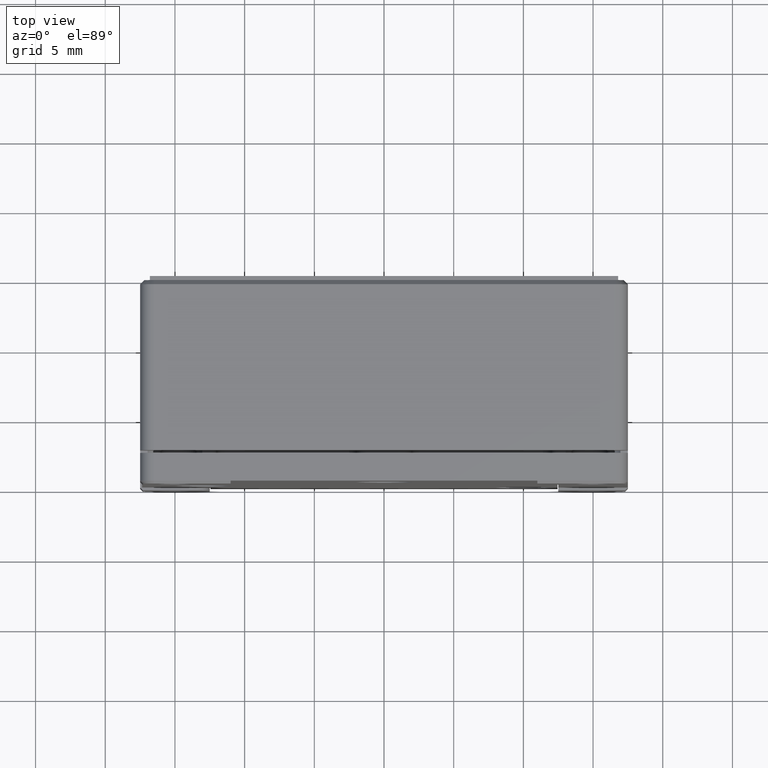
[diagram: clean part render]
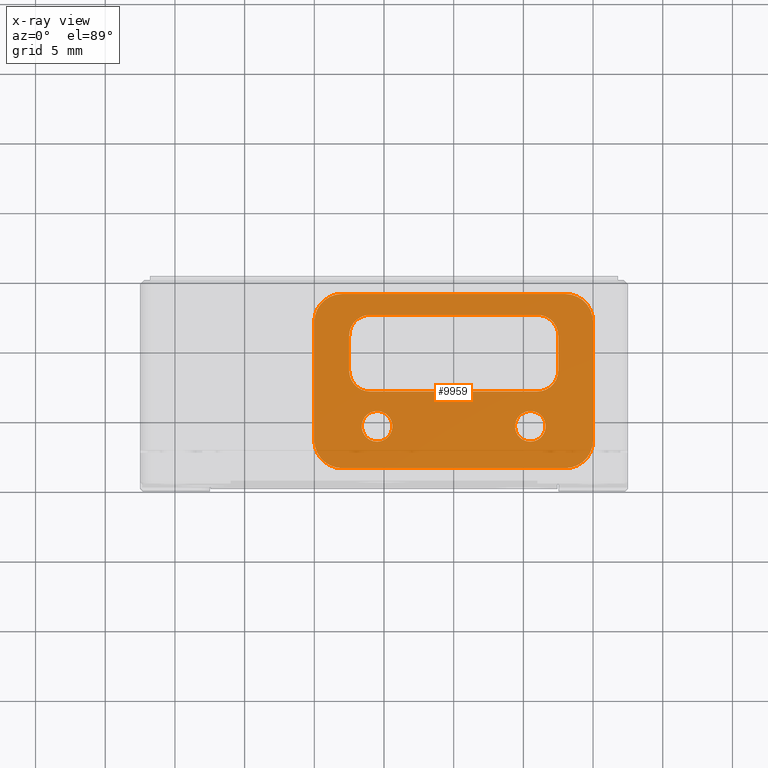
[diagram: x-ray — body ghosted, one internal face saturated and labeled with its STEP entity id]
A machine part, top view, then the same camera in x-ray: the body is ghosted and one INTERNAL B-rep face — a face not visible from any outside direction — is saturated and labeled: STEP entity #9959.
In plain terms, the highlighted planar face has unit normal (0, 0, 1).
Its self-contained STEP definition (entity closure, byte-faithful):
#2 = ORIENTED_EDGE ( 'NONE', *, *, #5007, .T. ) ;
#70 = ORIENTED_EDGE ( 'NONE', *, *, #6287, .F. ) ;
#321 = VECTOR ( 'NONE', #8746, 1000.000000000000000 ) ;
#572 = CARTESIAN_POINT ( 'NONE',  ( -10.00000000000000000, 0.7999999999999999334, -4.500000000000002665 ) ) ;
#698 = CARTESIAN_POINT ( 'NONE',  ( 5.500000000000000000, 0.8000000000000000444, -1.500000000000000000 ) ) ;
#843 = PLANE ( 'NONE',  #8462 ) ;
#909 = EDGE_LOOP ( 'NONE', ( #9063, #70, #16071, #14807, #2, #15566, #9960, #6589 ) ) ;
#948 = CIRCLE ( 'NONE', #12269, 1.500000000000000000 ) ;
#1138 = CARTESIAN_POINT ( 'NONE',  ( 7.500000000000000000, 0.8000000000000000444, 2.500000000000000000 ) ) ;
#1185 = ORIENTED_EDGE ( 'NONE', *, *, #7863, .F. ) ;
#1271 = AXIS2_PLACEMENT_3D ( 'NONE', #13746, #4487, #7508 ) ;
#1362 = CARTESIAN_POINT ( 'NONE',  ( 8.000000000000000000, 0.7999999999999999334, -2.500000000000000000 ) ) ;
#1399 = DIRECTION ( 'NONE',  ( -0.000000000000000000, -1.000000000000000000, -0.000000000000000000 ) ) ;
#1774 = AXIS2_PLACEMENT_3D ( 'NONE', #2378, #15418, #15224 ) ;
#1845 = VERTEX_POINT ( 'NONE', #6849 ) ;
#2378 = CARTESIAN_POINT ( 'NONE',  ( -6.000000000000000000, 0.8000000000000000444, 5.000000000000000000 ) ) ;
#2421 = CARTESIAN_POINT ( 'NONE',  ( 10.00000000000000000, 0.7999999999999999334, -4.500000000000002665 ) ) ;
#2520 = DIRECTION ( 'NONE',  ( 0.000000000000000000, 1.000000000000000000, 0.000000000000000000 ) ) ;
#2582 = EDGE_CURVE ( 'NONE', #19467, #19523, #15776, .T. ) ;
#2787 = ORIENTED_EDGE ( 'NONE', *, *, #4347, .F. ) ;
#2946 = AXIS2_PLACEMENT_3D ( 'NONE', #1362, #10647, #12622 ) ;
#2985 = DIRECTION ( 'NONE',  ( 0.000000000000000000, 0.000000000000000000, 1.000000000000000000 ) ) ;
#3158 = VERTEX_POINT ( 'NONE', #10769 ) ;
#3378 = LINE ( 'NONE', #19496, #11717 ) ;
#3410 = CARTESIAN_POINT ( 'NONE',  ( -5.500000000000000000, 0.8000000000000000444, -0.3999999999999999667 ) ) ;
#3629 = CARTESIAN_POINT ( 'NONE',  ( -8.000000000000000000, 0.7999999999999999334, 8.000000000000000000 ) ) ;
#3679 = VERTEX_POINT ( 'NONE', #3629 ) ;
#3721 = LINE ( 'NONE', #572, #13737 ) ;
#3943 = CIRCLE ( 'NONE', #2946, 2.000000000000000444 ) ;
#4022 = CARTESIAN_POINT ( 'NONE',  ( 7.500000000000000000, 0.8000000000000000444, 5.000000000000000000 ) ) ;
#4204 = CARTESIAN_POINT ( 'NONE',  ( 6.000000000000000000, 0.8000000000000000444, 5.000000000000000000 ) ) ;
#4289 = CIRCLE ( 'NONE', #12936, 1.100000000000000089 ) ;
#4347 = EDGE_CURVE ( 'NONE', #3679, #7879, #15639, .T. ) ;
#4487 = DIRECTION ( 'NONE',  ( 0.000000000000000000, -1.000000000000000000, 0.000000000000000000 ) ) ;
#4624 = EDGE_CURVE ( 'NONE', #18625, #19523, #948, .T. ) ;
#4643 = CIRCLE ( 'NONE', #19022, 2.000000000000000444 ) ;
#4694 = ORIENTED_EDGE ( 'NONE', *, *, #13230, .T. ) ;
#4753 = CARTESIAN_POINT ( 'NONE',  ( -5.500000000000000000, 0.8000000000000000444, -1.500000000000000000 ) ) ;
#4794 = EDGE_CURVE ( 'NONE', #20565, #12121, #4643, .T. ) ;
#4953 = VERTEX_POINT ( 'NONE', #17835 ) ;
#4986 = DIRECTION ( 'NONE',  ( -0.000000000000000000, -0.000000000000000000, -1.000000000000000000 ) ) ;
#5007 = EDGE_CURVE ( 'NONE', #19467, #4953, #14304, .T. ) ;
#5073 = CIRCLE ( 'NONE', #1774, 1.500000000000000444 ) ;
#5150 = CARTESIAN_POINT ( 'NONE',  ( -6.000000000000000000, 0.8000000000000000444, 2.500000000000000000 ) ) ;
#5174 = CARTESIAN_POINT ( 'NONE',  ( 10.00000000000000000, 0.7999999999999999334, 6.000000000000000000 ) ) ;
#5275 = DIRECTION ( 'NONE',  ( -0.000000000000000000, -0.000000000000000000, 1.000000000000000000 ) ) ;
#5304 = AXIS2_PLACEMENT_3D ( 'NONE', #4753, #1399, #2985 ) ;
#5630 = AXIS2_PLACEMENT_3D ( 'NONE', #4204, #10150, #16943 ) ;
#6244 = AXIS2_PLACEMENT_3D ( 'NONE', #5150, #19494, #6609 ) ;
#6287 = EDGE_CURVE ( 'NONE', #18625, #8335, #11457, .T. ) ;
#6532 = LINE ( 'NONE', #10163, #8404 ) ;
#6589 = ORIENTED_EDGE ( 'NONE', *, *, #19723, .F. ) ;
#6609 = DIRECTION ( 'NONE',  ( 1.156482317317871331E-15, 0.000000000000000000, 1.000000000000000000 ) ) ;
#6669 = DIRECTION ( 'NONE',  ( 0.000000000000000000, 0.000000000000000000, 1.000000000000000000 ) ) ;
#6698 = VERTEX_POINT ( 'NONE', #5174 ) ;
#6700 = VERTEX_POINT ( 'NONE', #16047 ) ;
#6708 = DIRECTION ( 'NONE',  ( -0.000000000000000000, -0.000000000000000000, 1.000000000000000000 ) ) ;
#6849 = CARTESIAN_POINT ( 'NONE',  ( 10.00000000000000000, 0.7999999999999999334, -2.500000000000000444 ) ) ;
#6894 = FACE_BOUND ( 'NONE', #16565, .T. ) ;
#7182 = CARTESIAN_POINT ( 'NONE',  ( 6.000000000000000000, 0.8000000000000000444, 1.000000000000000000 ) ) ;
#7307 = FACE_OUTER_BOUND ( 'NONE', #14583, .T. ) ;
#7368 = EDGE_CURVE ( 'NONE', #16317, #3158, #5073, .T. ) ;
#7508 = DIRECTION ( 'NONE',  ( 0.000000000000000000, 0.000000000000000000, -1.000000000000000000 ) ) ;
#7863 = EDGE_CURVE ( 'NONE', #9421, #3679, #3378, .T. ) ;
#7879 = VERTEX_POINT ( 'NONE', #19188 ) ;
#8335 = VERTEX_POINT ( 'NONE', #13710 ) ;
#8404 = VECTOR ( 'NONE', #5275, 1000.000000000000000 ) ;
#8462 = AXIS2_PLACEMENT_3D ( 'NONE', #14956, #2520, #19780 ) ;
#8529 = ORIENTED_EDGE ( 'NONE', *, *, #9906, .F. ) ;
#8535 = DIRECTION ( 'NONE',  ( -0.000000000000000000, -1.000000000000000000, -0.000000000000000000 ) ) ;
#8681 = ORIENTED_EDGE ( 'NONE', *, *, #4794, .F. ) ;
#8709 = DIRECTION ( 'NONE',  ( 0.000000000000000000, 0.000000000000000000, 1.000000000000000000 ) ) ;
#8746 = DIRECTION ( 'NONE',  ( -1.000000000000000000, -0.000000000000000000, 0.000000000000000000 ) ) ;
#8805 = EDGE_CURVE ( 'NONE', #7879, #20565, #3721, .T. ) ;
#9063 = ORIENTED_EDGE ( 'NONE', *, *, #14266, .T. ) ;
#9125 = CARTESIAN_POINT ( 'NONE',  ( 6.000000000000000000, 0.8000000000000000444, 2.500000000000000000 ) ) ;
#9372 = ORIENTED_EDGE ( 'NONE', *, *, #8805, .F. ) ;
#9421 = VERTEX_POINT ( 'NONE', #9750 ) ;
#9750 = CARTESIAN_POINT ( 'NONE',  ( 8.000000000000000000, 0.7999999999999999334, 8.000000000000000000 ) ) ;
#9906 = EDGE_CURVE ( 'NONE', #6698, #9421, #12120, .T. ) ;
#9959 = ADVANCED_FACE ( 'N', ( #10235, #14846, #6894, #7307 ), #843, .T. ) ;
#9960 = ORIENTED_EDGE ( 'NONE', *, *, #7368, .T. ) ;
#10150 = DIRECTION ( 'NONE',  ( -0.000000000000000000, -1.000000000000000000, -0.000000000000000000 ) ) ;
#10163 = CARTESIAN_POINT ( 'NONE',  ( 10.00000000000000000, 0.7999999999999999334, 8.000000000000000000 ) ) ;
#10235 = FACE_BOUND ( 'NONE', #18646, .T. ) ;
#10354 = ORIENTED_EDGE ( 'NONE', *, *, #18360, .F. ) ;
#10433 = DIRECTION ( 'NONE',  ( 0.000000000000000000, 0.000000000000000000, -1.000000000000000000 ) ) ;
#10562 = VECTOR ( 'NONE', #15665, 1000.000000000000000 ) ;
#10584 = DIRECTION ( 'NONE',  ( -0.000000000000000000, -1.000000000000000000, -0.000000000000000000 ) ) ;
#10647 = DIRECTION ( 'NONE',  ( 0.000000000000000000, -1.000000000000000000, 0.000000000000000000 ) ) ;
#10769 = CARTESIAN_POINT ( 'NONE',  ( -7.500000000000000000, 0.8000000000000000444, 5.000000000000000000 ) ) ;
#11457 = LINE ( 'NONE', #15136, #321 ) ;
#11533 = VERTEX_POINT ( 'NONE', #3410 ) ;
#11701 = VECTOR ( 'NONE', #18779, 1000.000000000000000 ) ;
#11717 = VECTOR ( 'NONE', #13048, 1000.000000000000000 ) ;
#11901 = EDGE_CURVE ( 'NONE', #16317, #4953, #15204, .T. ) ;
#12059 = ORIENTED_EDGE ( 'NONE', *, *, #17671, .F. ) ;
#12120 = CIRCLE ( 'NONE', #12449, 2.000000000000000000 ) ;
#12121 = VERTEX_POINT ( 'NONE', #12962 ) ;
#12269 = AXIS2_PLACEMENT_3D ( 'NONE', #9125, #10584, #8709 ) ;
#12449 = AXIS2_PLACEMENT_3D ( 'NONE', #14427, #12839, #10433 ) ;
#12622 = DIRECTION ( 'NONE',  ( 0.000000000000000000, 0.000000000000000000, -1.000000000000000000 ) ) ;
#12839 = DIRECTION ( 'NONE',  ( 0.000000000000000000, -1.000000000000000000, 0.000000000000000000 ) ) ;
#12936 = AXIS2_PLACEMENT_3D ( 'NONE', #698, #8535, #6669 ) ;
#12962 = CARTESIAN_POINT ( 'NONE',  ( -8.000000000000000000, 0.7999999999999999334, -4.500000000000001776 ) ) ;
#13048 = DIRECTION ( 'NONE',  ( -1.000000000000000000, -0.000000000000000000, 0.000000000000000000 ) ) ;
#13230 = EDGE_CURVE ( 'NONE', #11533, #11533, #14299, .T. ) ;
#13420 = VERTEX_POINT ( 'NONE', #16507 ) ;
#13710 = CARTESIAN_POINT ( 'NONE',  ( -6.000000000000000000, 0.8000000000000000444, 1.000000000000000000 ) ) ;
#13737 = VECTOR ( 'NONE', #4986, 1000.000000000000000 ) ;
#13746 = CARTESIAN_POINT ( 'NONE',  ( -8.000000000000000000, 0.7999999999999999334, 6.000000000000000000 ) ) ;
#14019 = CARTESIAN_POINT ( 'NONE',  ( -8.000000000000000000, 0.7999999999999999334, -2.500000000000000000 ) ) ;
#14266 = EDGE_CURVE ( 'NONE', #13420, #8335, #15250, .T. ) ;
#14299 = CIRCLE ( 'NONE', #5304, 1.100000000000000089 ) ;
#14303 = EDGE_CURVE ( 'NONE', #12121, #6700, #17119, .T. ) ;
#14304 = CIRCLE ( 'NONE', #5630, 1.500000000000000444 ) ;
#14427 = CARTESIAN_POINT ( 'NONE',  ( 8.000000000000000000, 0.7999999999999999334, 6.000000000000000000 ) ) ;
#14480 = CARTESIAN_POINT ( 'NONE',  ( 5.500000000000000000, 0.8000000000000000444, -0.3999999999999999667 ) ) ;
#14553 = LINE ( 'NONE', #16245, #16857 ) ;
#14583 = EDGE_LOOP ( 'NONE', ( #15597, #8681, #9372, #2787, #1185, #8529, #12059, #10354 ) ) ;
#14779 = CARTESIAN_POINT ( 'NONE',  ( 7.500000000000000000, 0.8000000000000000444, 2.500000000000000000 ) ) ;
#14807 = ORIENTED_EDGE ( 'NONE', *, *, #2582, .F. ) ;
#14846 = FACE_BOUND ( 'NONE', #909, .T. ) ;
#14956 = CARTESIAN_POINT ( 'NONE',  ( 0.000000000000000000, 0.8000000000000000444, 0.000000000000000000 ) ) ;
#15136 = CARTESIAN_POINT ( 'NONE',  ( -6.000000000000000000, 0.8000000000000000444, 1.000000000000000000 ) ) ;
#15204 = LINE ( 'NONE', #19938, #11701 ) ;
#15224 = DIRECTION ( 'NONE',  ( 0.000000000000000000, 0.000000000000000000, 1.000000000000000000 ) ) ;
#15250 = CIRCLE ( 'NONE', #6244, 1.500000000000000000 ) ;
#15418 = DIRECTION ( 'NONE',  ( -0.000000000000000000, -1.000000000000000000, -0.000000000000000000 ) ) ;
#15566 = ORIENTED_EDGE ( 'NONE', *, *, #11901, .F. ) ;
#15597 = ORIENTED_EDGE ( 'NONE', *, *, #14303, .F. ) ;
#15603 = EDGE_CURVE ( 'NONE', #19331, #19331, #4289, .T. ) ;
#15639 = CIRCLE ( 'NONE', #1271, 2.000000000000000000 ) ;
#15665 = DIRECTION ( 'NONE',  ( 1.000000000000000000, -0.000000000000000000, 0.000000000000000000 ) ) ;
#15776 = LINE ( 'NONE', #1138, #16525 ) ;
#16047 = CARTESIAN_POINT ( 'NONE',  ( 8.000000000000000000, 0.7999999999999999334, -4.500000000000002665 ) ) ;
#16071 = ORIENTED_EDGE ( 'NONE', *, *, #4624, .T. ) ;
#16245 = CARTESIAN_POINT ( 'NONE',  ( -7.500000000000000000, 0.8000000000000000444, 5.000000000000000000 ) ) ;
#16317 = VERTEX_POINT ( 'NONE', #20263 ) ;
#16507 = CARTESIAN_POINT ( 'NONE',  ( -7.500000000000000000, 0.8000000000000000444, 2.499999999999999556 ) ) ;
#16525 = VECTOR ( 'NONE', #17245, 1000.000000000000000 ) ;
#16565 = EDGE_LOOP ( 'NONE', ( #4694 ) ) ;
#16857 = VECTOR ( 'NONE', #6708, 1000.000000000000000 ) ;
#16943 = DIRECTION ( 'NONE',  ( 0.000000000000000000, 0.000000000000000000, 1.000000000000000000 ) ) ;
#17119 = LINE ( 'NONE', #2421, #10562 ) ;
#17245 = DIRECTION ( 'NONE',  ( -0.000000000000000000, -0.000000000000000000, -1.000000000000000000 ) ) ;
#17300 = DIRECTION ( 'NONE',  ( 0.000000000000000000, -1.000000000000000000, 0.000000000000000000 ) ) ;
#17401 = DIRECTION ( 'NONE',  ( 0.000000000000000000, 0.000000000000000000, -1.000000000000000000 ) ) ;
#17617 = ORIENTED_EDGE ( 'NONE', *, *, #15603, .T. ) ;
#17671 = EDGE_CURVE ( 'NONE', #1845, #6698, #6532, .T. ) ;
#17835 = CARTESIAN_POINT ( 'NONE',  ( 6.000000000000000000, 0.8000000000000000444, 6.500000000000002665 ) ) ;
#18360 = EDGE_CURVE ( 'NONE', #6700, #1845, #3943, .T. ) ;
#18625 = VERTEX_POINT ( 'NONE', #7182 ) ;
#18646 = EDGE_LOOP ( 'NONE', ( #17617 ) ) ;
#18779 = DIRECTION ( 'NONE',  ( 1.000000000000000000, -0.000000000000000000, 0.000000000000000000 ) ) ;
#18828 = CARTESIAN_POINT ( 'NONE',  ( -10.00000000000000000, 0.7999999999999999334, -2.500000000000000000 ) ) ;
#19022 = AXIS2_PLACEMENT_3D ( 'NONE', #14019, #17300, #17401 ) ;
#19188 = CARTESIAN_POINT ( 'NONE',  ( -10.00000000000000000, 0.7999999999999999334, 6.000000000000000000 ) ) ;
#19331 = VERTEX_POINT ( 'NONE', #14480 ) ;
#19467 = VERTEX_POINT ( 'NONE', #4022 ) ;
#19494 = DIRECTION ( 'NONE',  ( -0.000000000000000000, -1.000000000000000000, -0.000000000000000000 ) ) ;
#19496 = CARTESIAN_POINT ( 'NONE',  ( -10.00000000000000000, 0.7999999999999999334, 8.000000000000000000 ) ) ;
#19523 = VERTEX_POINT ( 'NONE', #14779 ) ;
#19723 = EDGE_CURVE ( 'NONE', #13420, #3158, #14553, .T. ) ;
#19780 = DIRECTION ( 'NONE',  ( 0.000000000000000000, -0.000000000000000000, 1.000000000000000000 ) ) ;
#19938 = CARTESIAN_POINT ( 'NONE',  ( 6.000000000000000000, 0.8000000000000000444, 6.500000000000002665 ) ) ;
#20263 = CARTESIAN_POINT ( 'NONE',  ( -6.000000000000000000, 0.8000000000000000444, 6.500000000000001776 ) ) ;
#20565 = VERTEX_POINT ( 'NONE', #18828 ) ;